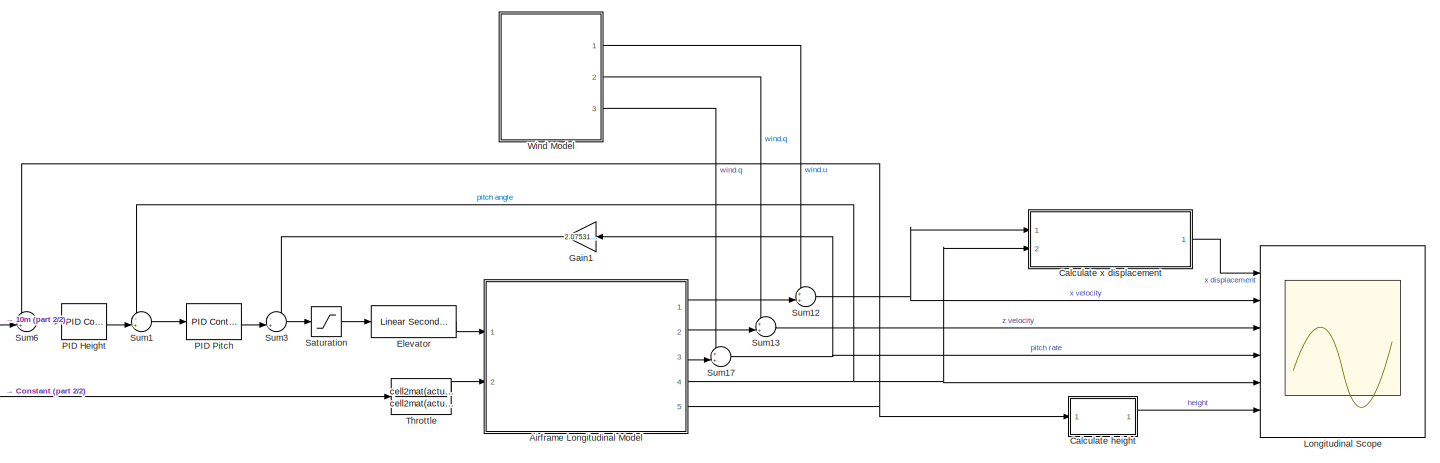
[diagram: root canvas - part 1/2, most of the canvas]
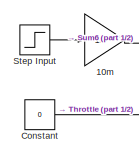
[diagram: root canvas - part 2/2, bottom left region]
MODEL slx_210697f2d62d
KIND model
CONFIG AbsTol = auto
CONFIG EnableMultiTasking = off
CONFIG FixedStep = 1e-3
CONFIG MaxStep = auto
CONFIG MinStep = auto
CONFIG RelTol = 1e-5
CONFIG SampleTimeConstraint = Unconstrained
CONFIG Solver = VariableStepAuto
CONFIG SolverName = VariableStepAuto
CONFIG StartTime = 0.0
CONFIG StopTime = 100
BLOCK [Gain] 10m
  Gain = 10
  OutDataTypeStr = Inherit: Inherit via internal rule
  ParamDataTypeStr = Inherit: Inherit via internal rule
  SaturateOnIntegerOverflow = off
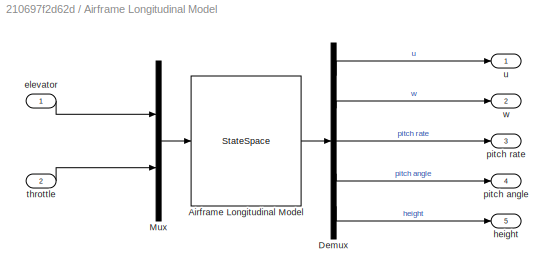
BLOCK [SubSystem] Airframe Longitudinal Model
  Ports = [2, 5]
  RequestExecContextInheritance = off
BLOCK [StateSpace] Airframe Longitudinal Model/Airframe Longitudinal Model
  A = sys.long.A
  B = sys.long.B
  C = sys.long.C
  D = sys.long.D
  InitialCondition = 0
  Ports = [1, 1]
BLOCK [Demux] Airframe Longitudinal Model/Demux
  DisplayOption = bar
  Outputs = 5
  Ports = [1, 5]
BLOCK [Mux] Airframe Longitudinal Model/Mux
  DisplayOption = bar
  Inputs = 2
  Ports = [2, 1]
BLOCK [Inport] Airframe Longitudinal Model/elevator
  IconDisplay = Port number
BLOCK [Outport] Airframe Longitudinal Model/height
  IconDisplay = Port number
  Port = 5
BLOCK [Outport] Airframe Longitudinal Model/pitch angle
  IconDisplay = Port number
  Port = 4
BLOCK [Outport] Airframe Longitudinal Model/pitch rate
  IconDisplay = Port number
  Port = 3
BLOCK [Inport] Airframe Longitudinal Model/throttle
  IconDisplay = Port number
  Port = 2
BLOCK [Outport] Airframe Longitudinal Model/u
  IconDisplay = Port number
BLOCK [Outport] Airframe Longitudinal Model/w
  IconDisplay = Port number
  Port = 2
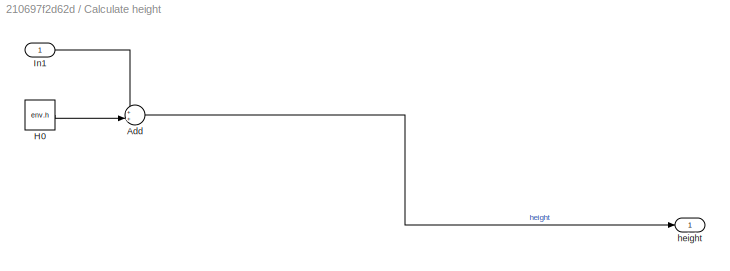
BLOCK [SubSystem] Calculate height
  Ports = [1, 1]
  RequestExecContextInheritance = off
BLOCK [Sum] Calculate height/Add
  IconShape = round
  InputSameDT = off
  Inputs = ++|
  OutDataTypeStr = Inherit: Inherit via internal rule
  Ports = [2, 1]
  SaturateOnIntegerOverflow = off
BLOCK [Constant] Calculate height/H0
  Value = env.h
BLOCK [Inport] Calculate height/In1
  IconDisplay = Port number
BLOCK [Outport] Calculate height/height
  IconDisplay = Port number
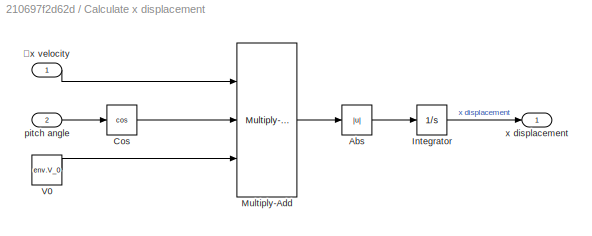
BLOCK [SubSystem] Calculate x displacement
  Ports = [2, 1]
  RequestExecContextInheritance = off
BLOCK [Abs] Calculate x displacement/Abs
  SaturateOnIntegerOverflow = off
BLOCK [Trigonometry] Calculate x displacement/Cos
  Operator = cos
  Ports = [1, 1]
BLOCK [Integrator] Calculate x displacement/Integrator
  Ports = [1, 1]
BLOCK [Reference] Calculate x displacement/Multiply-Add  REF=hdlsllib/HDL Operations/Multiply-Add
  Ports = [3, 1]
  SourceBlock = hdlsllib/HDL Operations/Multiply-Add
  SourceProductBaseCode = SL
  SourceProductName = Simulink
  SourceType = Multiply-Add
BLOCK [Constant] Calculate x displacement/V0
  Value = env.V_0
BLOCK [Inport] Calculate x displacement/pitch angle
  IconDisplay = Port number
  Port = 2
BLOCK [Outport] Calculate x displacement/x displacement
  IconDisplay = Port number
BLOCK [Inport] Calculate x displacement/𝚫x velocity
  IconDisplay = Port number
BLOCK [Constant] Constant
  Value = 0
BLOCK [Reference] Elevator  REF=aerolibactuator/Linear Second-Order Actuator
  Ports = [1, 1]
  SourceBlock = aerolibactuator/Linear Second-Order Actuator
  SourceProductBaseCode = AE
  SourceProductName = Aerospace Blockset
  SourceType = LinearSecondOrderActuator
BLOCK [Gain] Gain1
  Gain = 2.07531227652104
  OutDataTypeStr = Inherit: Inherit via internal rule
  ParamDataTypeStr = Inherit: Inherit via internal rule
  SaturateOnIntegerOverflow = off
BLOCK [Scope] Longitudinal Scope
  Floating = off
  NumInputPorts = 6
  Ports = [6]
  ScopeSpecificationString = Simulink.scopes.TimeScopeBlockCfg('CurrentConfiguration', extmgr.ConfigurationSet(extmgr.Configuration('Core','General UI',true,'FigureColor',[1 1 1]),extmgr.Configuration('Core','Source UI',true),extmgr.Configuration('Sources','WiredSimulink',true,'DataLoggingVariableName','ScopeData2'),extmgr.Configuration('Visuals','Time Domain',true,'SerializedDisplays',{struct('MinYLimReal','-138.87791','MaxY...<+6963ch>
BLOCK [Reference] PID Height  REF=simulink/Continuous/PID Controller
  Ports = [1, 1]
  SourceBlock = simulink/Continuous/PID Controller
  SourceProductBaseCode = SL
  SourceProductName = Simulink
  SourceType = PID 1dof
BLOCK [Reference] PID Pitch  REF=simulink/Continuous/PID Controller
  Ports = [1, 1]
  SourceBlock = simulink/Continuous/PID Controller
  SourceProductBaseCode = SL
  SourceProductName = Simulink
  SourceType = PID 1dof
BLOCK [Saturate] Saturation
  InputPortMap = u0
  LinearizeAsGain = off
  LowerLimit = geometry.elevator.limits(2)
  Ports = [1, 1]
  UpperLimit = geometry.elevator.limits(1)
BLOCK [Step] Step Input
  Time = 0
BLOCK [Sum] Sum1
  IconShape = round
  InputSameDT = off
  Inputs = -+|
  OutDataTypeStr = Inherit: Inherit via internal rule
  Ports = [2, 1]
  SaturateOnIntegerOverflow = off
BLOCK [Sum] Sum12
  IconShape = round
  InputSameDT = off
  Inputs = ++|
  OutDataTypeStr = Inherit: Inherit via internal rule
  Ports = [2, 1]
  SaturateOnIntegerOverflow = off
BLOCK [Sum] Sum13
  IconShape = round
  InputSameDT = off
  Inputs = ++|
  OutDataTypeStr = Inherit: Inherit via internal rule
  Ports = [2, 1]
  SaturateOnIntegerOverflow = off
BLOCK [Sum] Sum17
  IconShape = round
  InputSameDT = off
  Inputs = ++|
  OutDataTypeStr = Inherit: Inherit via internal rule
  Ports = [2, 1]
  SaturateOnIntegerOverflow = off
BLOCK [Sum] Sum3
  IconShape = round
  InputSameDT = off
  Inputs = -+|
  OutDataTypeStr = Inherit: Inherit via internal rule
  Ports = [2, 1]
  SaturateOnIntegerOverflow = off
BLOCK [Sum] Sum6
  IconShape = round
  InputSameDT = off
  Inputs = -+|
  OutDataTypeStr = Inherit: Inherit via internal rule
  Ports = [2, 1]
  SaturateOnIntegerOverflow = off
BLOCK [TransferFcn] Throttle
  Denominator = cell2mat(actuators.TF.Denominator)
  Numerator = cell2mat(actuators.TF.Numerator)
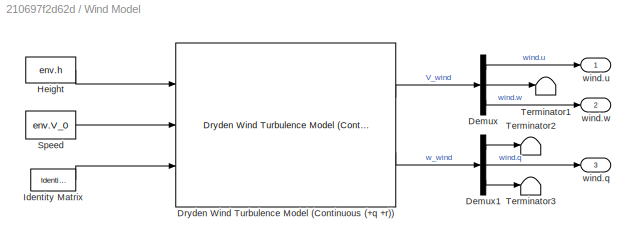
BLOCK [SubSystem] Wind Model
  Ports = [0, 3]
  RequestExecContextInheritance = off
BLOCK [Demux] Wind Model/Demux
  DisplayOption = bar
  Outputs = 3
  Ports = [1, 3]
BLOCK [Demux] Wind Model/Demux1
  DisplayOption = bar
  Outputs = 3
  Ports = [1, 3]
BLOCK [Reference] Wind Model/Dryden Wind Turbulence Model (Continuous (+q +r))  REF=aerolibwind2/Dryden Wind Turbulence Model 
(Continuous (+q -r))
  Ports = [3, 2]
  SourceBlock = aerolibwind2/Dryden Wind Turbulence Model \n(Continuous (+q -r))
  SourceProductBaseCode = AE
  SourceProductName = Aerospace Blockset
  SourceType = Wind Turbulence Model
BLOCK [Constant] Wind Model/Height
  Value = env.h
BLOCK [Reference] Wind Model/Identity Matrix  REF=dspmtrx3/Identity Matrix
  Ports = [0, 1]
  SourceBlock = dspmtrx3/Identity Matrix
  SourceProductBaseCode = DS
  SourceProductName = DSP System Toolbox
  SourceType = Identity Matrix
BLOCK [Constant] Wind Model/Speed
  Value = env.V_0
BLOCK [Terminator] Wind Model/Terminator1
BLOCK [Terminator] Wind Model/Terminator2
BLOCK [Terminator] Wind Model/Terminator3
BLOCK [Outport] Wind Model/wind.q
  IconDisplay = Port number
  Port = 3
BLOCK [Outport] Wind Model/wind.u
  IconDisplay = Port number
BLOCK [Outport] Wind Model/wind.w
  IconDisplay = Port number
  Port = 2
LINE 10m:1 -> Sum6:2
LINE Airframe Longitudinal Model/Airframe Longitudinal Model:1 -> Airframe Longitudinal Model/Demux:1
LINE Airframe Longitudinal Model/Demux:1 -> Airframe Longitudinal Model/u:1
LINE Airframe Longitudinal Model/Demux:2 -> Airframe Longitudinal Model/w:1
LINE Airframe Longitudinal Model/Demux:3 -> Airframe Longitudinal Model/pitch rate:1
LINE Airframe Longitudinal Model/Demux:4 -> Airframe Longitudinal Model/pitch angle:1
LINE Airframe Longitudinal Model/Demux:5 -> Airframe Longitudinal Model/height:1
LINE Airframe Longitudinal Model/Mux:1 -> Airframe Longitudinal Model/Airframe Longitudinal Model:1
LINE Airframe Longitudinal Model/elevator:1 -> Airframe Longitudinal Model/Mux:1
LINE Airframe Longitudinal Model/throttle:1 -> Airframe Longitudinal Model/Mux:2
LINE Airframe Longitudinal Model:1 -> Sum12:2
LINE Airframe Longitudinal Model:2 -> Sum13:2
LINE Airframe Longitudinal Model:3 -> Sum17:2
NET Airframe Longitudinal Model:4 -> Calculate x displacement:2, Longitudinal Scope:5, Sum1:1
NET Airframe Longitudinal Model:5 -> Calculate height:1, Sum6:1
LINE Calculate height/Add:1 -> Calculate height/height:1
LINE Calculate height/H0:1 -> Calculate height/Add:2
LINE Calculate height/In1:1 -> Calculate height/Add:1
LINE Calculate height:1 -> Longitudinal Scope:6
LINE Calculate x displacement/Abs:1 -> Calculate x displacement/Integrator:1
LINE Calculate x displacement/Cos:1 -> Calculate x displacement/Multiply-Add:2
LINE Calculate x displacement/Integrator:1 -> Calculate x displacement/x displacement:1
LINE Calculate x displacement/Multiply-Add:1 -> Calculate x displacement/Abs:1
LINE Calculate x displacement/V0:1 -> Calculate x displacement/Multiply-Add:3
LINE Calculate x displacement/pitch angle:1 -> Calculate x displacement/Cos:1
LINE Calculate x displacement/𝚫x velocity:1 -> Calculate x displacement/Multiply-Add:1
LINE Calculate x displacement:1 -> Longitudinal Scope:1
LINE Constant:1 -> Throttle:1
LINE Elevator:1 -> Airframe Longitudinal Model:1
LINE Gain1:1 -> Sum3:1
LINE PID Height:1 -> Sum1:2
LINE PID Pitch:1 -> Sum3:2
LINE Saturation:1 -> Elevator:1
LINE Step Input:1 -> 10m:1
NET Sum12:1 -> Calculate x displacement:1, Longitudinal Scope:2
LINE Sum13:1 -> Longitudinal Scope:3
NET Sum17:1 -> Gain1:1, Longitudinal Scope:4
LINE Sum1:1 -> PID Pitch:1
LINE Sum3:1 -> Saturation:1
LINE Sum6:1 -> PID Height:1
LINE Throttle:1 -> Airframe Longitudinal Model:2
LINE Wind Model/Demux1:1 -> Wind Model/Terminator2:1
LINE Wind Model/Demux1:2 -> Wind Model/wind.q:1
LINE Wind Model/Demux1:3 -> Wind Model/Terminator3:1
LINE Wind Model/Demux:1 -> Wind Model/wind.u:1
LINE Wind Model/Demux:2 -> Wind Model/Terminator1:1
LINE Wind Model/Demux:3 -> Wind Model/wind.w:1
LINE Wind Model/Dryden Wind Turbulence Model (Continuous (+q +r)):1 -> Wind Model/Demux:1
LINE Wind Model/Dryden Wind Turbulence Model (Continuous (+q +r)):2 -> Wind Model/Demux1:1
LINE Wind Model/Height:1 -> Wind Model/Dryden Wind Turbulence Model (Continuous (+q +r)):1
LINE Wind Model/Identity Matrix:1 -> Wind Model/Dryden Wind Turbulence Model (Continuous (+q +r)):3
LINE Wind Model/Speed:1 -> Wind Model/Dryden Wind Turbulence Model (Continuous (+q +r)):2
LINE Wind Model:1 -> Sum12:1
LINE Wind Model:2 -> Sum13:1
LINE Wind Model:3 -> Sum17:1
note: NET lines group one-source signal fan-out (src -> all destinations, sorted); 1:1 wires keep LINE
